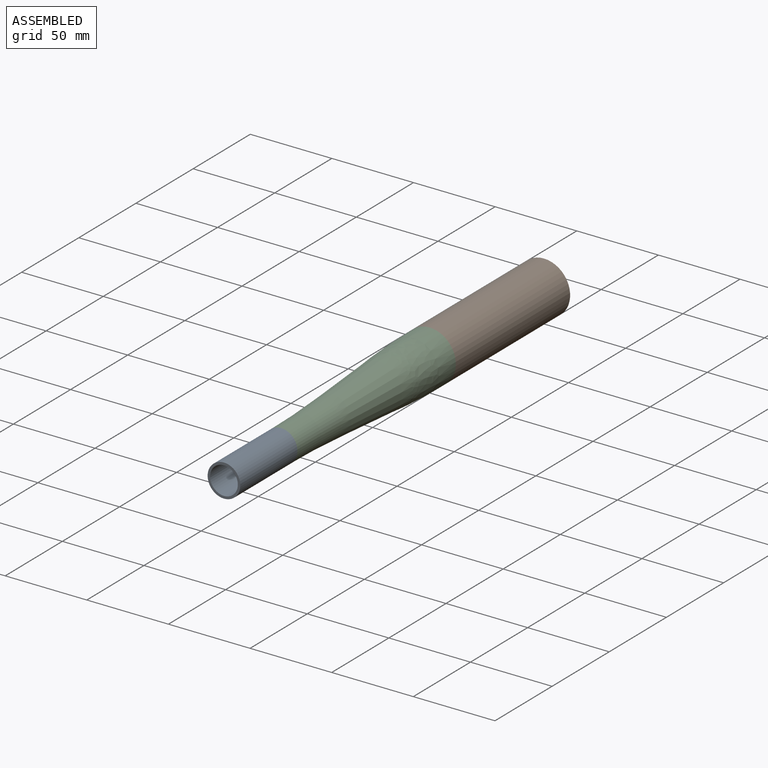
[diagram: assembled view]
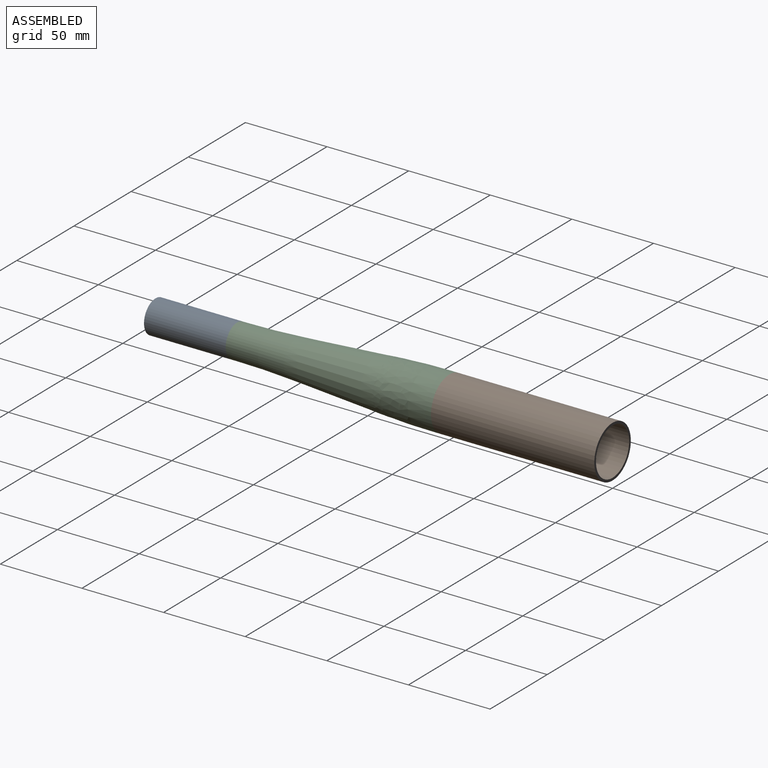
[diagram: assembled view, second angle]
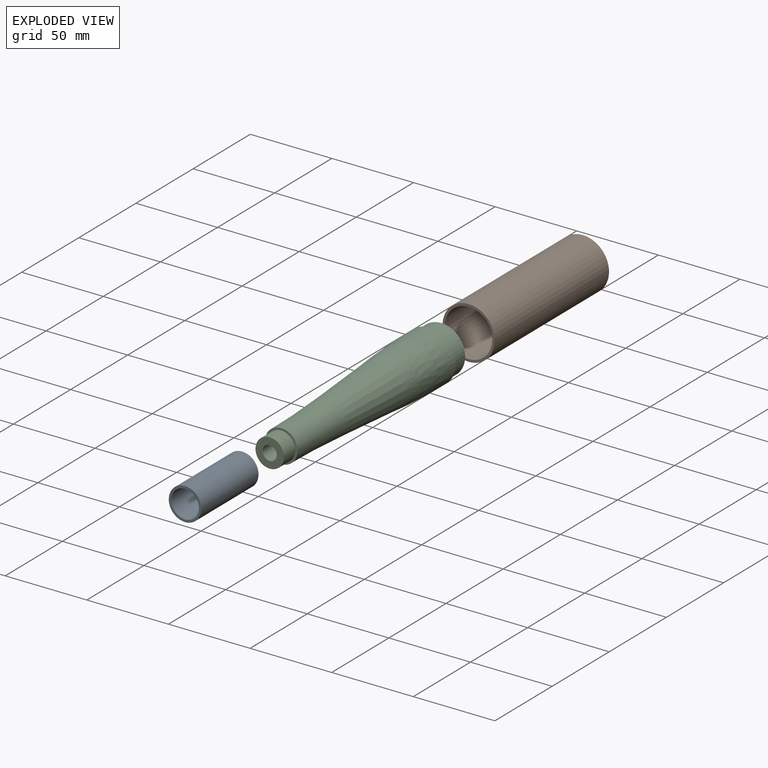
[diagram: exploded view]
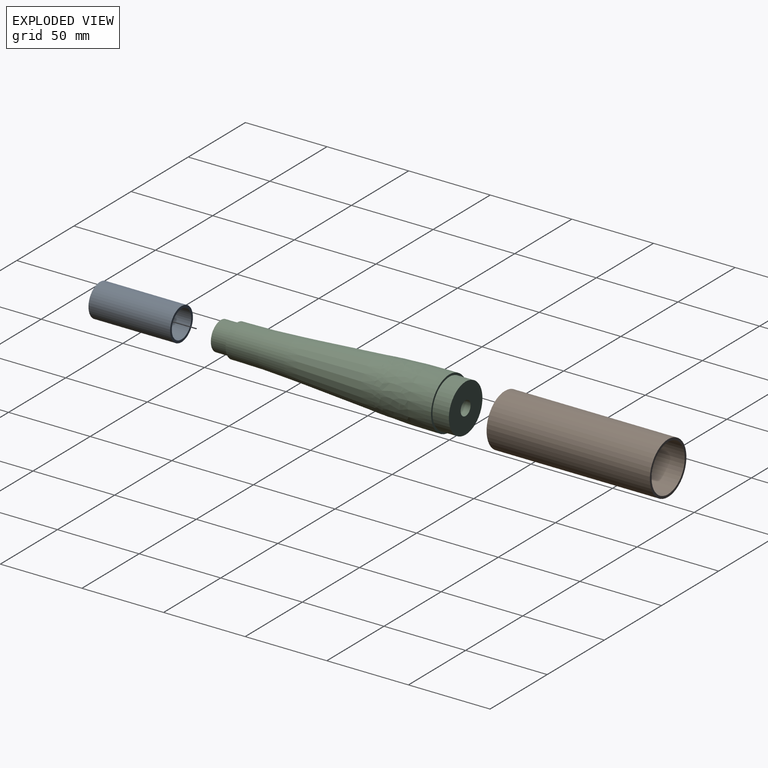
[diagram: exploded view, second angle]
ASSEMBLY  parts=3 mates=2
PART A: 4 faces, bbox 20x50x20 mm
  f0: cylinder r=8.5mm len=50mm, axis (0,1,0), area 2670.4mm2, adj f2,f3
  f1: cylinder r=10mm len=50mm, axis (0,1,0), area 3141.6mm2, adj f2,f3
  f2: plane 20x20mm, normal (0,-1,0), area 87.2mm2, adj f0,f1
  f3: plane 20x20mm, normal (0,1,0), area 87.2mm2, adj f0,f1
PART B: 4 faces, bbox 32x100x32 mm
  f0: cylinder r=14.5mm len=100mm, axis (0,1,0), area 9110.6mm2, adj f2,f3
  f1: cylinder r=16mm len=100mm, axis (0,1,0), area 10053.1mm2, adj f2,f3
  f2: plane 32x32mm, normal (0,-1,0), area 143.7mm2, adj f0,f1
  f3: plane 32x32mm, normal (0,1,0), area 143.7mm2, adj f0,f1
PART C: 16 faces, bbox 335.5x368.4x335.5 mm
  f0: cylinder r=4.35mm len=12mm, axis (0,-1,0), area 328mm2, adj f1,f13
  f1: cone r=9.35mm half-angle=45deg, axis (0,-1,0), area 304.3mm2, adj f0,f2
  f2: cone r=6.35mm half-angle=1.4deg, axis (0,1,0), area 5871.3mm2, adj f1,f3
  f3: cone r=4.35mm half-angle=45deg, axis (0,1,0), area 95.1mm2, adj f2,f4
  f4: cylinder r=4.35mm len=12mm, axis (0,-1,0), area 328mm2, adj f3,f5
  f5: plane 17.4x17.4mm, normal (0,-1,0), area 178.3mm2, adj f4,f6
  f6: cylinder r=8.7mm len=17.4mm, axis (0,-1,0), area 546.6mm2, adj f5,f7
  f7: plane 20x20mm, normal (0,-1,0), area 76.4mm2, adj f6,f8
  f8: cylinder r=10mm len=20mm, axis (0,-1,0), area 210.6mm2, adj f7,f14
  f9: cone r=16mm half-angle=3.8deg, axis (0,1,0), area 4647.9mm2, adj f14,f15
  f10: cylinder r=16mm len=32mm, axis (0,-1,0), area 337mm2, adj f11,f15
  f11: plane 32x32mm, normal (0,1,0), area 125.4mm2, adj f10,f12
  f12: cylinder r=14.7mm len=29.4mm, axis (0,-1,0), area 923.6mm2, adj f11,f13
  f13: plane 29.4x29.4mm, normal (0,1,0), area 619.4mm2, adj f0,f12
  f14: torus R=510mm, axis (0,-1,0), area 2168.5mm2, adj f8,f9
  f15: revolved ~33.26x32mm, area 3268.9mm2, adj f9,f10
PLACE A t=(0,-205,0)mm
PLACE B at identity fixed
PLACE C t=(0,-40,0)mm
MATE fastened B.f1 <-> C.f0  axis (0,-1,0) through (0,-50,0)mm
MATE fastened C.f0 <-> A.f1  axis (0,-1,0) through (0,-180,0)mm
